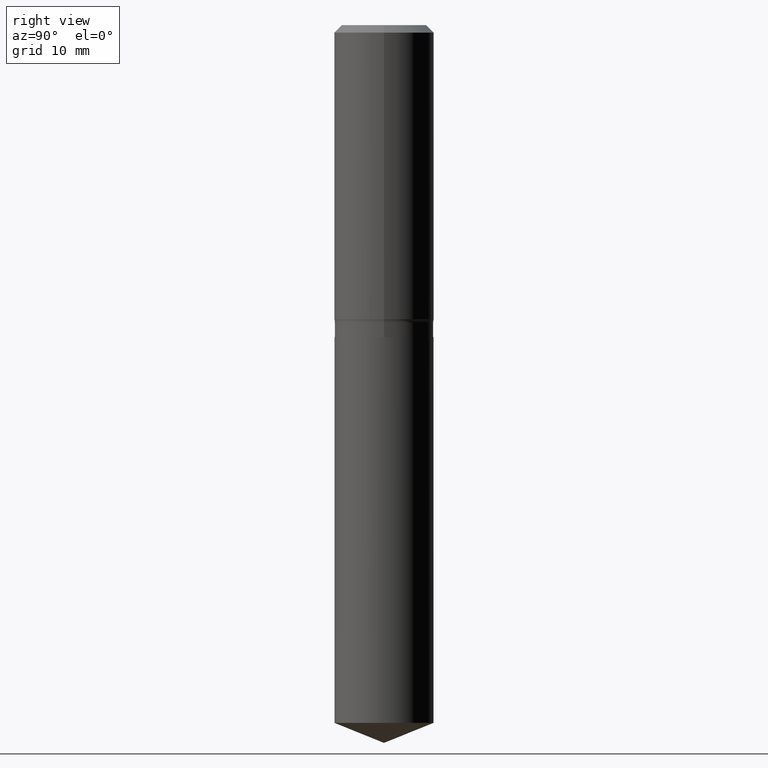
[diagram: clean part render]
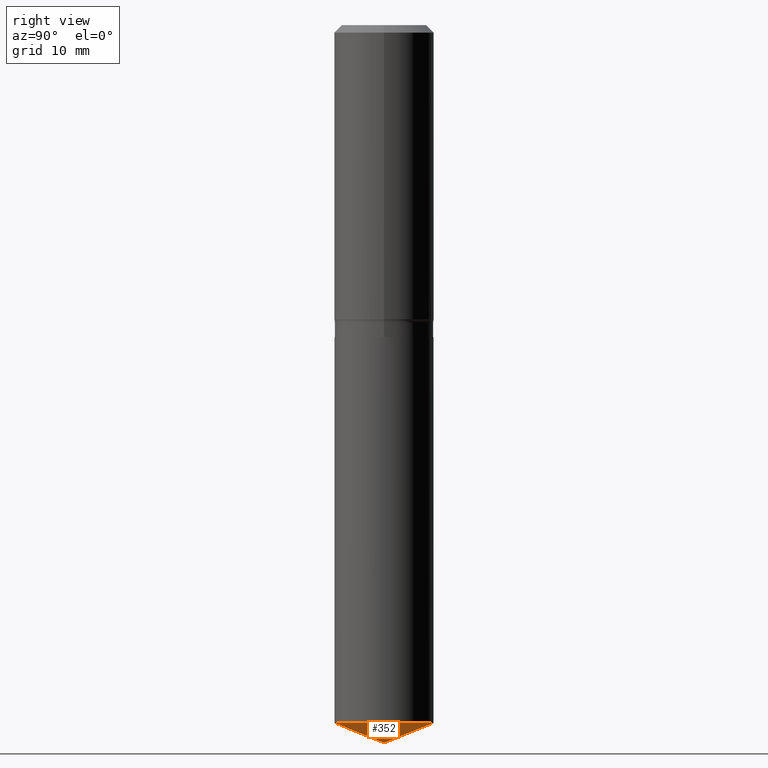
[diagram: same view with one face highlighted and labeled with its STEP entity id]
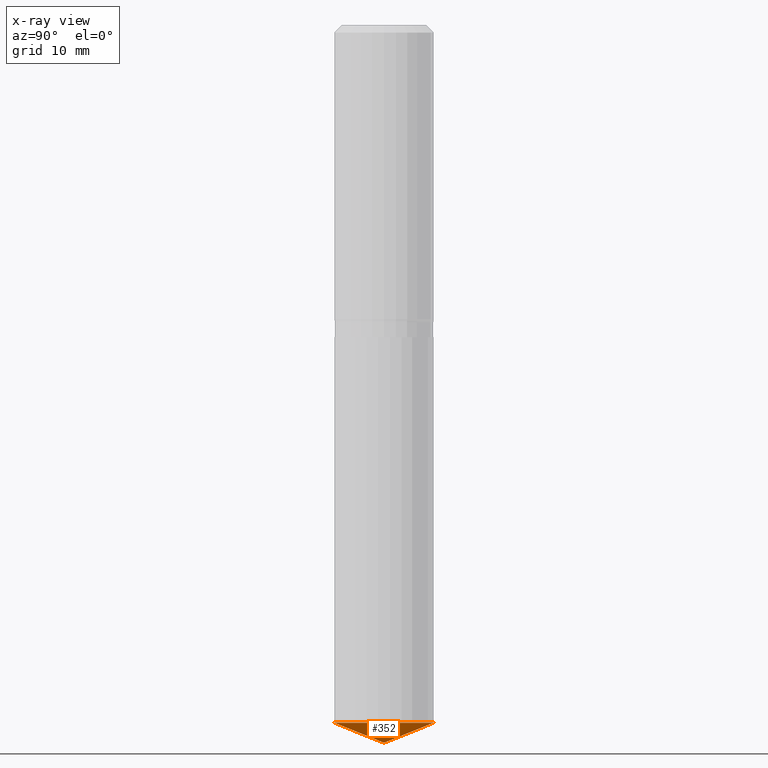
[diagram: x-ray of the same camera — body ghosted, the highlighted face saturated]
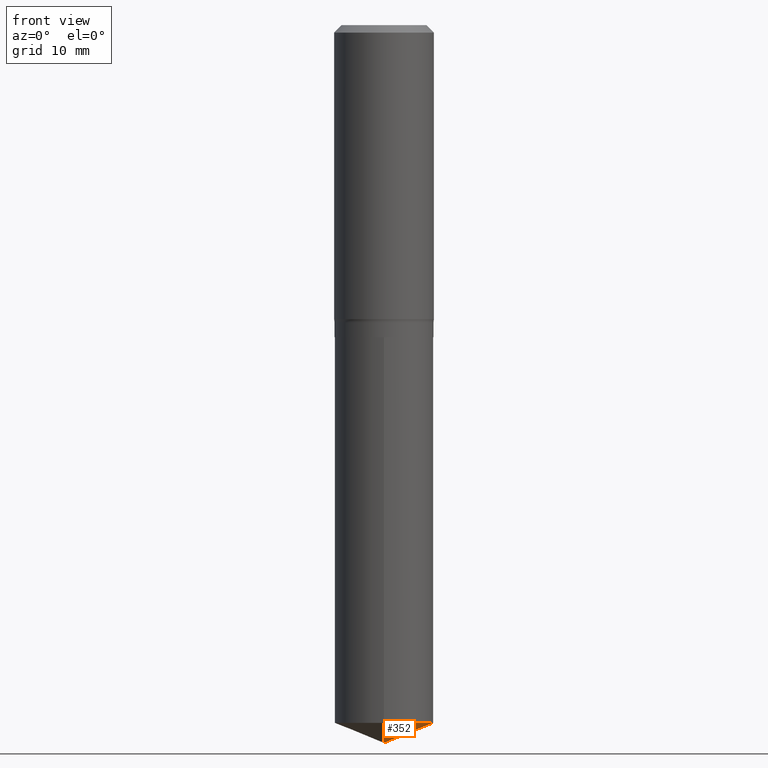
[diagram: same view with one face highlighted and labeled with its STEP entity id]
A machine part, right view. The second image highlights one B-rep face of the part: STEP entity #352.
The next image is the same camera in x-ray: the body ghosted, the highlighted face saturated — about 0% of this face is hidden behind the body in this view.
A second angle (front view) of the same face is appended — the face is thin or edge-on in the first view.
In plain terms, the highlighted conical surface has half-angle 68 deg.
Its self-contained STEP definition (entity closure, byte-faithful):
#35 = LINE ( 'NONE', #351, #261 ) ;
#38 = EDGE_CURVE ( 'NONE', #477, #122, #236, .T. ) ;
#84 = VERTEX_POINT ( 'NONE', #192 ) ;
#90 = AXIS2_PLACEMENT_3D ( 'NONE', #340, #141, #144 ) ;
#95 = CARTESIAN_POINT ( 'NONE',  ( 1.107201973483394939E-28, -1.580815993616041291E-14, -4.527599999999999625 ) ) ;
#96 = EDGE_CURVE ( 'NONE', #477, #84, #35, .T. ) ;
#108 = DIRECTION ( 'NONE',  ( -6.982962677686265133E-15, -1.000000000000000000, 3.496765431890256920E-15 ) ) ;
#109 = DIRECTION ( 'NONE',  ( 6.588037525764796813E-15, 0.9271838545667898668, 0.3746065934159055755 ) ) ;
#122 = VERTEX_POINT ( 'NONE', #394 ) ;
#141 = DIRECTION ( 'NONE',  ( -2.445316251726159407E-29, 3.491699805511261497E-15, 1.000000000000000000 ) ) ;
#144 = DIRECTION ( 'NONE',  ( -6.982962677686265922E-15, -1.000000000000000000, 3.498761904101801525E-15 ) ) ;
#149 = DIRECTION ( 'NONE',  ( -2.445316251726159407E-29, 3.491699805511261497E-15, 1.000000000000000000 ) ) ;
#184 = FACE_OUTER_BOUND ( 'NONE', #285, .T. ) ;
#192 = CARTESIAN_POINT ( 'NONE',  ( -2.182175836776850668E-15, -0.3125000000000153766, -4.401341804426513349 ) ) ;
#193 = VECTOR ( 'NONE', #109, 39.37007874015748854 ) ;
#195 = DIRECTION ( 'NONE',  ( -6.474490251793184940E-15, -0.9271838545667873133, 0.3746065934159120703 ) ) ;
#197 = ORIENTED_EDGE ( 'NONE', *, *, #96, .F. ) ;
#236 = LINE ( 'NONE', #95, #193 ) ;
#245 = AXIS2_PLACEMENT_3D ( 'NONE', #346, #149, #108 ) ;
#261 = VECTOR ( 'NONE', #195, 39.37007874015748854 ) ;
#285 = EDGE_LOOP ( 'NONE', ( #197, #481, #326 ) ) ;
#326 = ORIENTED_EDGE ( 'NONE', *, *, #370, .F. ) ;
#340 = CARTESIAN_POINT ( 'NONE',  ( -8.520057921027778746E-28, 1.216599062921743266E-13, 34.84247874015748181 ) ) ;
#346 = CARTESIAN_POINT ( 'NONE',  ( 1.076297294721839221E-28, -1.536773427086845792E-14, -4.401341804426514237 ) ) ;
#351 = CARTESIAN_POINT ( 'NONE',  ( 1.107141386131535772E-28, -1.580902003943278441E-14, -4.527599999999999625 ) ) ;
#352 = ADVANCED_FACE ( 'NONE', ( #184 ), #379, .T. ) ;
#357 = CIRCLE ( 'NONE', #245, 0.3125000000000000000 ) ;
#370 = EDGE_CURVE ( 'NONE', #84, #122, #357, .T. ) ;
#379 = CONICAL_SURFACE ( 'NONE', #90, 97.44436430772914548, 1.186823891356147520 ) ;
#394 = CARTESIAN_POINT ( 'NONE',  ( 2.220446049250420366E-15, 0.3124999999999847344, -4.401341804426515125 ) ) ;
#443 = CARTESIAN_POINT ( 'NONE',  ( 1.107141386131535772E-28, -1.580902003943278441E-14, -4.527599999999999625 ) ) ;
#477 = VERTEX_POINT ( 'NONE', #443 ) ;
#481 = ORIENTED_EDGE ( 'NONE', *, *, #38, .T. ) ;